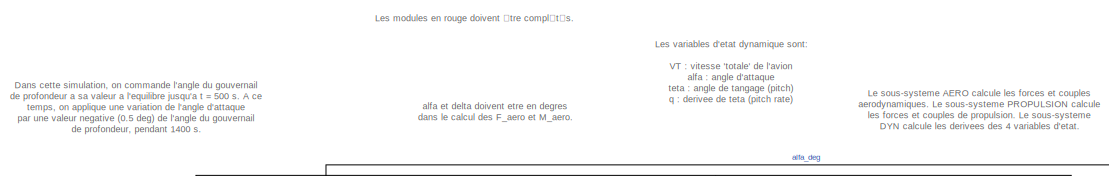
[diagram: root canvas - part 1/2, top center region]
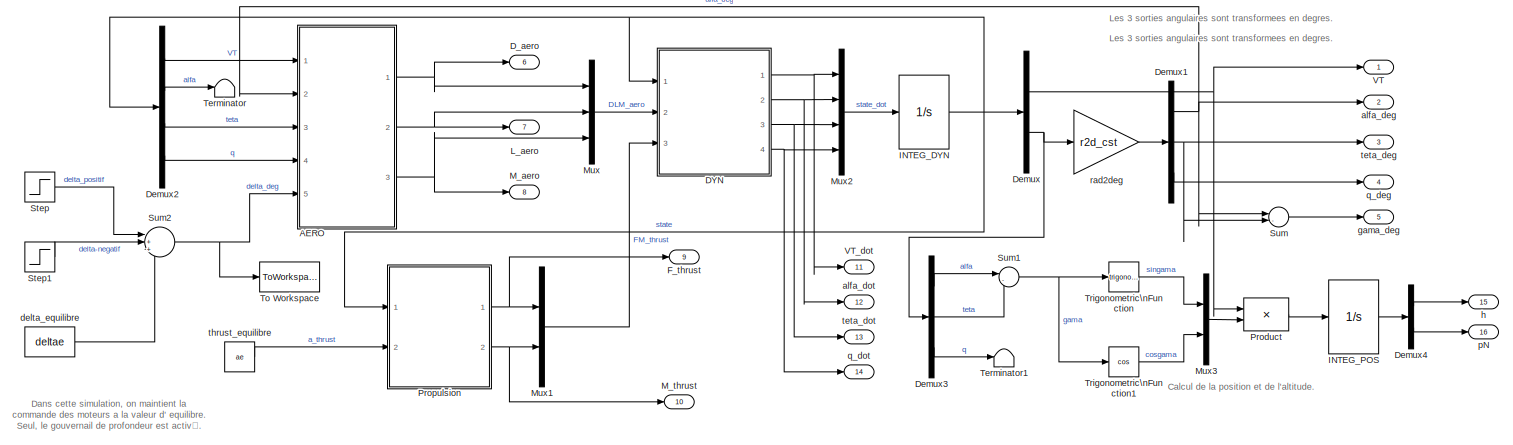
[diagram: root canvas - part 2/2, full width, middle band]
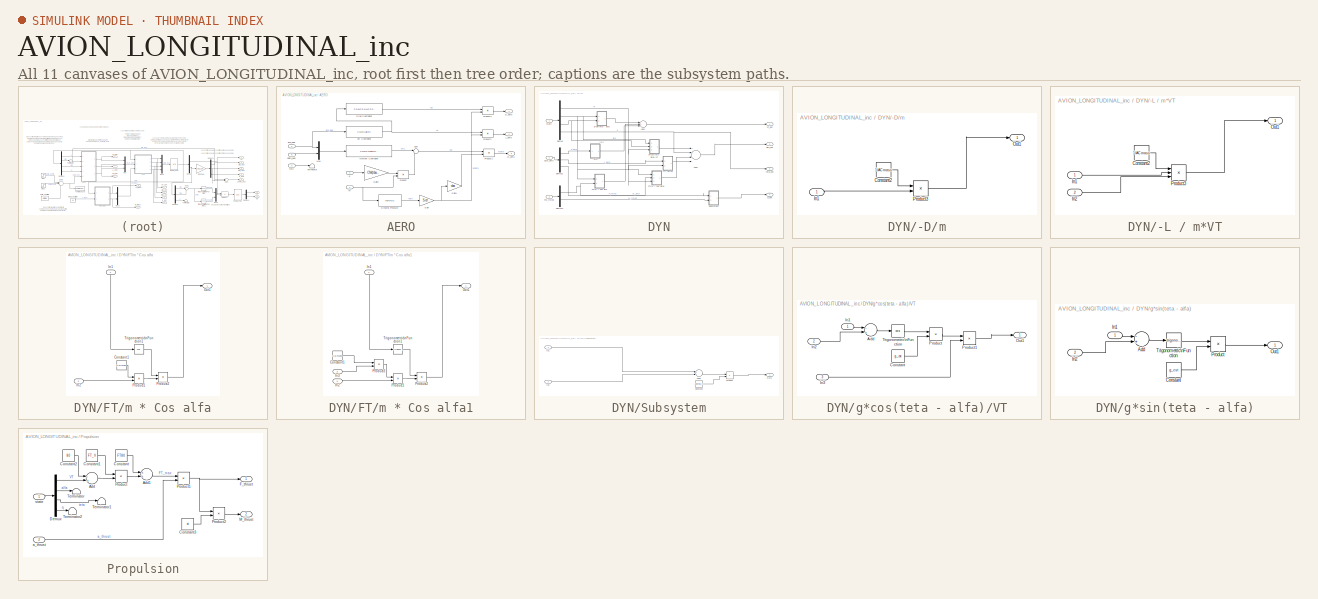
[diagram: thumbnail index - all 11 canvases of the model, root first then tree order]
MODEL AVION_LONGITUDINAL_inc
KIND model
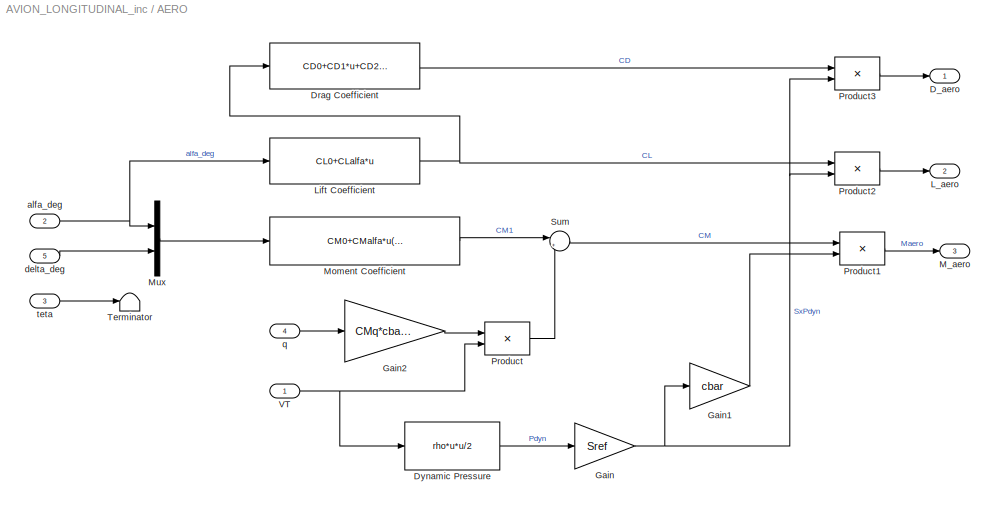
BLOCK [SubSystem] AERO
  FunctionWithSeparateData = off
  MaskHideContents = off
  MinAlgLoopOccurrences = off
  Opaque = off
  Ports = [5, 3]
  PropExecContextOutsideSubsystem = off
  RTWSystemCode = Auto
  RequestExecContextInheritance = off
  SID = 1
BLOCK [Outport] AERO/D_aero
  IconDisplay = Port number
  SID = 21
BLOCK [Fcn] AERO/Drag Coefficient
  Expr = CD0+CD1*u+CD2*u*u
  SID = 7
BLOCK [Fcn] AERO/Dynamic Pressure
  Expr = rho*u*u/2
  SID = 8
BLOCK [Gain] AERO/Gain
  Gain = Sref
  SID = 9
BLOCK [Gain] AERO/Gain1
  Gain = cbar
  SID = 10
BLOCK [Gain] AERO/Gain2
  Gain = CMq*cbar/2
  SID = 11
BLOCK [Outport] AERO/L_aero
  IconDisplay = Port number
  Port = 2
  SID = 22
BLOCK [Fcn] AERO/Lift Coefficient
  Expr = CL0+CLalfa*u
  SID = 12
BLOCK [Outport] AERO/M_aero
  IconDisplay = Port number
  Port = 3
  SID = 23
BLOCK [Fcn] AERO/Moment Coefficient
  Expr = CM0+CMalfa*u(1)+CMdelta*u(2)
  SID = 13
BLOCK [Mux] AERO/Mux
  DisplayOption = bar
  Inputs = 2
  Ports = [2, 1]
  SID = 14
BLOCK [Product] AERO/Product
  Inputs = */
  Ports = [2, 1]
  RndMeth = Floor
  SID = 15
BLOCK [Product] AERO/Product1
  Inputs = **
  Ports = [2, 1]
  RndMeth = Floor
  SID = 16
BLOCK [Product] AERO/Product2
  Inputs = **
  Ports = [2, 1]
  RndMeth = Floor
  SID = 17
BLOCK [Product] AERO/Product3
  Inputs = **
  Ports = [2, 1]
  RndMeth = Floor
  SID = 18
BLOCK [Sum] AERO/Sum
  IconShape = round
  Inputs = |++
  Ports = [2, 1]
  SID = 19
BLOCK [Terminator] AERO/Terminator
  SID = 20
BLOCK [Inport] AERO/VT
  IconDisplay = Port number
  SID = 2
BLOCK [Inport] AERO/alfa_deg
  IconDisplay = Port number
  Port = 2
  SID = 3
BLOCK [Inport] AERO/delta_deg
  IconDisplay = Port number
  Port = 5
  SID = 6
BLOCK [Inport] AERO/q
  IconDisplay = Port number
  Port = 4
  SID = 5
BLOCK [Inport] AERO/teta
  IconDisplay = Port number
  Port = 3
  SID = 4
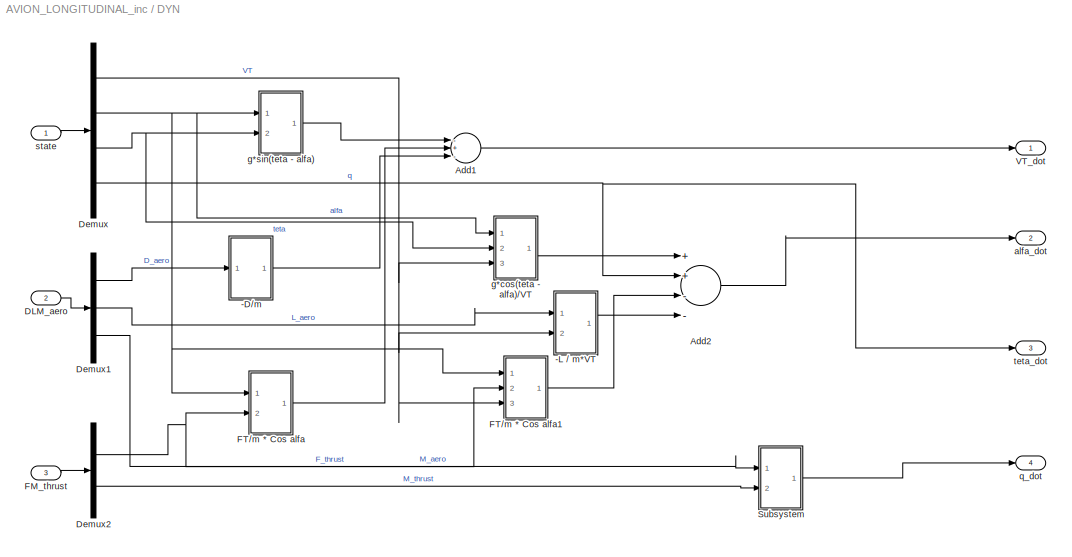
BLOCK [SubSystem] DYN
  FunctionWithSeparateData = off
  MaskHideContents = off
  MinAlgLoopOccurrences = off
  Opaque = off
  Ports = [3, 4]
  PropExecContextOutsideSubsystem = off
  RTWSystemCode = Auto
  RequestExecContextInheritance = off
  SID = 25
BLOCK [SubSystem] DYN/-D//m
  FunctionWithSeparateData = off
  MaskHideContents = off
  MinAlgLoopOccurrences = off
  Opaque = off
  Ports = [1, 1]
  PropExecContextOutsideSubsystem = off
  RTWSystemCode = Auto
  RequestExecContextInheritance = off
  SID = 180
BLOCK [Constant] DYN/-D//m/Constant2
  SID = 170
  Value = 1/ACmass
BLOCK [Inport] DYN/-D//m/In1
  IconDisplay = Port number
  SID = 181
BLOCK [Outport] DYN/-D//m/Out1
  IconDisplay = Port number
  SID = 182
BLOCK [Product] DYN/-D//m/Product3
  InputSameDT = off
  OutDataTypeStr = Inherit: Inherit via internal rule
  Ports = [2, 1]
  RndMeth = Floor
  SID = 171
  SaturateOnIntegerOverflow = off
BLOCK [SubSystem] DYN/-L // m*VT
  FunctionWithSeparateData = off
  MaskHideContents = off
  MinAlgLoopOccurrences = off
  Opaque = off
  Ports = [2, 1]
  PropExecContextOutsideSubsystem = off
  RTWSystemCode = Auto
  RequestExecContextInheritance = off
  SID = 214
BLOCK [Constant] DYN/-L // m*VT/Constant2
  SID = 216
  Value = 1/ACmass
BLOCK [Inport] DYN/-L // m*VT/In1
  IconDisplay = Port number
  SID = 215
BLOCK [Inport] DYN/-L // m*VT/In2
  IconDisplay = Port number
  Port = 2
  SID = 219
BLOCK [Outport] DYN/-L // m*VT/Out1
  IconDisplay = Port number
  SID = 218
BLOCK [Product] DYN/-L // m*VT/Product3
  InputSameDT = off
  Inputs = **/
  OutDataTypeStr = Inherit: Inherit via internal rule
  Ports = [3, 1]
  RndMeth = Floor
  SID = 217
  SaturateOnIntegerOverflow = off
BLOCK [Sum] DYN/Add1
  InputSameDT = off
  Inputs = -+-
  OutDataTypeStr = Inherit: Inherit via internal rule
  Ports = [3, 1]
  SID = 165
  SaturateOnIntegerOverflow = off
BLOCK [Sum] DYN/Add2
  InputSameDT = off
  Inputs = ++--
  OutDataTypeStr = Inherit: Inherit via internal rule
  Ports = [4, 1]
  SID = 200
  SaturateOnIntegerOverflow = off
BLOCK [Inport] DYN/DLM_aero
  IconDisplay = Port number
  Port = 2
  SID = 27
BLOCK [Demux] DYN/Demux
  Ports = [1, 4]
  SID = 29
BLOCK [Demux] DYN/Demux1
  Outputs = 3
  Ports = [1, 3]
  SID = 30
BLOCK [Demux] DYN/Demux2
  Outputs = 2
  Ports = [1, 2]
  SID = 31
BLOCK [Inport] DYN/FM_thrust
  IconDisplay = Port number
  Port = 3
  SID = 28
BLOCK [SubSystem] DYN/FT//m * Cos alfa
  FunctionWithSeparateData = off
  MaskHideContents = off
  MinAlgLoopOccurrences = off
  Opaque = off
  Ports = [2, 1]
  PropExecContextOutsideSubsystem = off
  RTWSystemCode = Auto
  RequestExecContextInheritance = off
  SID = 176
BLOCK [Constant] DYN/FT//m * Cos alfa/Constant1
  SID = 167
  Value = 1/ACmass
BLOCK [Inport] DYN/FT//m * Cos alfa/In1
  IconDisplay = Port number
  SID = 177
BLOCK [Inport] DYN/FT//m * Cos alfa/In2
  IconDisplay = Port number
  Port = 2
  SID = 178
BLOCK [Outport] DYN/FT//m * Cos alfa/Out1
  IconDisplay = Port number
  SID = 179
BLOCK [Product] DYN/FT//m * Cos alfa/Product1
  InputSameDT = off
  OutDataTypeStr = Inherit: Inherit via internal rule
  Ports = [2, 1]
  RndMeth = Floor
  SID = 166
  SaturateOnIntegerOverflow = off
BLOCK [Product] DYN/FT//m * Cos alfa/Product2
  InputSameDT = off
  OutDataTypeStr = Inherit: Inherit via internal rule
  Ports = [2, 1]
  RndMeth = Floor
  SID = 169
  SaturateOnIntegerOverflow = off
BLOCK [Trigonometry] DYN/FT//m * Cos alfa/Trigonometric\nFunction1
  Operator = cos
  Ports = [1, 1]
  SID = 168
BLOCK [SubSystem] DYN/FT//m * Cos alfa1
  FunctionWithSeparateData = off
  MaskHideContents = off
  MinAlgLoopOccurrences = off
  Opaque = off
  Ports = [3, 1]
  PropExecContextOutsideSubsystem = off
  RTWSystemCode = Auto
  RequestExecContextInheritance = off
  SID = 201
BLOCK [Constant] DYN/FT//m * Cos alfa1/Constant1
  SID = 204
  Value = 1/ACmass
BLOCK [Inport] DYN/FT//m * Cos alfa1/In1
  IconDisplay = Port number
  SID = 202
BLOCK [Inport] DYN/FT//m * Cos alfa1/In2
  IconDisplay = Port number
  Port = 2
  SID = 203
BLOCK [Inport] DYN/FT//m * Cos alfa1/In3
  IconDisplay = Port number
  Port = 3
  SID = 211
BLOCK [Outport] DYN/FT//m * Cos alfa1/Out1
  IconDisplay = Port number
  SID = 208
BLOCK [Product] DYN/FT//m * Cos alfa1/Product1
  InputSameDT = off
  OutDataTypeStr = Inherit: Inherit via internal rule
  Ports = [2, 1]
  RndMeth = Floor
  SID = 205
  SaturateOnIntegerOverflow = off
BLOCK [Product] DYN/FT//m * Cos alfa1/Product2
  InputSameDT = off
  OutDataTypeStr = Inherit: Inherit via internal rule
  Ports = [2, 1]
  RndMeth = Floor
  SID = 206
  SaturateOnIntegerOverflow = off
BLOCK [Product] DYN/FT//m * Cos alfa1/Product3
  InputSameDT = off
  Inputs = */
  OutDataTypeStr = Inherit: Inherit via internal rule
  Ports = [2, 1]
  RndMeth = Floor
  SID = 209
  SaturateOnIntegerOverflow = off
BLOCK [Trigonometry] DYN/FT//m * Cos alfa1/Trigonometric\nFunction1
  Ports = [1, 1]
  SID = 207
BLOCK [SubSystem] DYN/Subsystem
  FunctionWithSeparateData = off
  MaskHideContents = off
  MinAlgLoopOccurrences = off
  Opaque = off
  Ports = [2, 1]
  PropExecContextOutsideSubsystem = off
  RTWSystemCode = Auto
  RequestExecContextInheritance = off
  SID = 223
BLOCK [Sum] DYN/Subsystem/Add3
  InputSameDT = off
  OutDataTypeStr = Inherit: Inherit via internal rule
  Ports = [2, 1]
  SID = 220
  SaturateOnIntegerOverflow = off
BLOCK [Constant] DYN/Subsystem/Constant
  SID = 222
  Value = ACinertia_yy
BLOCK [Inport] DYN/Subsystem/In1
  IconDisplay = Port number
  SID = 224
BLOCK [Inport] DYN/Subsystem/In2
  IconDisplay = Port number
  Port = 2
  SID = 225
BLOCK [Outport] DYN/Subsystem/Out1
  IconDisplay = Port number
  SID = 226
BLOCK [Product] DYN/Subsystem/Product
  InputSameDT = off
  Inputs = */
  OutDataTypeStr = Inherit: Inherit via internal rule
  Ports = [2, 1]
  RndMeth = Floor
  SID = 221
  SaturateOnIntegerOverflow = off
BLOCK [Outport] DYN/VT_dot
  IconDisplay = Port number
  SID = 51
BLOCK [Outport] DYN/alfa_dot
  IconDisplay = Port number
  Port = 2
  SID = 52
BLOCK [SubSystem] DYN/g*cos(teta - alfa)//VT
  FunctionWithSeparateData = off
  MaskHideContents = off
  MinAlgLoopOccurrences = off
  Opaque = off
  Ports = [3, 1]
  PropExecContextOutsideSubsystem = off
  RTWSystemCode = Auto
  RequestExecContextInheritance = off
  SID = 187
BLOCK [Sum] DYN/g*cos(teta - alfa)//VT/Add
  InputSameDT = off
  Inputs = -+
  OutDataTypeStr = Inherit: Inherit via internal rule
  Ports = [2, 1]
  SID = 190
  SaturateOnIntegerOverflow = off
BLOCK [Constant] DYN/g*cos(teta - alfa)//VT/Constant
  SID = 191
  Value = g_cst
BLOCK [Inport] DYN/g*cos(teta - alfa)//VT/In1
  IconDisplay = Port number
  SID = 188
BLOCK [Inport] DYN/g*cos(teta - alfa)//VT/In2
  IconDisplay = Port number
  Port = 2
  SID = 189
BLOCK [Inport] DYN/g*cos(teta - alfa)//VT/In3
  IconDisplay = Port number
  Port = 3
  SID = 195
BLOCK [Outport] DYN/g*cos(teta - alfa)//VT/Out1
  IconDisplay = Port number
  SID = 194
BLOCK [Product] DYN/g*cos(teta - alfa)//VT/Product
  InputSameDT = off
  OutDataTypeStr = Inherit: Inherit via internal rule
  Ports = [2, 1]
  RndMeth = Floor
  SID = 192
  SaturateOnIntegerOverflow = off
BLOCK [Product] DYN/g*cos(teta - alfa)//VT/Product1
  InputSameDT = off
  Inputs = */
  OutDataTypeStr = Inherit: Inherit via internal rule
  Ports = [2, 1]
  RndMeth = Floor
  SID = 196
  SaturateOnIntegerOverflow = off
BLOCK [Trigonometry] DYN/g*cos(teta - alfa)//VT/Trigonometric\nFunction
  Operator = cos
  Ports = [1, 1]
  SID = 193
BLOCK [SubSystem] DYN/g*sin(teta - alfa)
  FunctionWithSeparateData = off
  MaskHideContents = off
  MinAlgLoopOccurrences = off
  Opaque = off
  Ports = [2, 1]
  PropExecContextOutsideSubsystem = off
  RTWSystemCode = Auto
  RequestExecContextInheritance = off
  SID = 183
BLOCK [Sum] DYN/g*sin(teta - alfa)/Add
  InputSameDT = off
  Inputs = -+
  OutDataTypeStr = Inherit: Inherit via internal rule
  Ports = [2, 1]
  SID = 162
  SaturateOnIntegerOverflow = off
BLOCK [Constant] DYN/g*sin(teta - alfa)/Constant
  SID = 161
  Value = g_cst
BLOCK [Inport] DYN/g*sin(teta - alfa)/In1
  IconDisplay = Port number
  SID = 184
BLOCK [Inport] DYN/g*sin(teta - alfa)/In2
  IconDisplay = Port number
  Port = 2
  SID = 185
BLOCK [Outport] DYN/g*sin(teta - alfa)/Out1
  IconDisplay = Port number
  SID = 186
BLOCK [Product] DYN/g*sin(teta - alfa)/Product
  InputSameDT = off
  OutDataTypeStr = Inherit: Inherit via internal rule
  Ports = [2, 1]
  RndMeth = Floor
  SID = 164
  SaturateOnIntegerOverflow = off
BLOCK [Trigonometry] DYN/g*sin(teta - alfa)/Trigonometric\nFunction
  Ports = [1, 1]
  SID = 163
BLOCK [Outport] DYN/q_dot
  IconDisplay = Port number
  Port = 4
  SID = 54
BLOCK [Inport] DYN/state
  IconDisplay = Port number
  SID = 26
BLOCK [Outport] DYN/teta_dot
  IconDisplay = Port number
  Port = 3
  SID = 53
BLOCK [Outport] D_aero
  IconDisplay = Port number
  Port = 6
  SID = 115
BLOCK [Demux] Demux
  Outputs = [1,3]
  Ports = [1, 2]
  SID = 55
BLOCK [Demux] Demux1
  Outputs = 3
  Ports = [1, 3]
  SID = 56
BLOCK [Demux] Demux2
  Ports = [1, 4]
  SID = 57
BLOCK [Demux] Demux3
  Outputs = 3
  Ports = [1, 3]
  SID = 58
BLOCK [Demux] Demux4
  Outputs = 2
  Ports = [1, 2]
  SID = 59
BLOCK [Outport] F_thrust
  IconDisplay = Port number
  Port = 9
  SID = 118
BLOCK [Integrator] INTEG_DYN
  InitialCondition = etat_ini
  Ports = [1, 1]
  SID = 63
BLOCK [Integrator] INTEG_POS
  InitialCondition = pos_ini
  Ports = [1, 1]
  SID = 64
BLOCK [Outport] L_aero
  IconDisplay = Port number
  Port = 7
  SID = 116
BLOCK [Outport] M_aero
  IconDisplay = Port number
  Port = 8
  SID = 117
BLOCK [Outport] M_thrust
  IconDisplay = Port number
  Port = 10
  SID = 119
BLOCK [Mux] Mux
  DisplayOption = bar
  Inputs = 3
  Ports = [3, 1]
  SID = 67
BLOCK [Mux] Mux1
  DisplayOption = bar
  Inputs = 2
  Ports = [2, 1]
  SID = 68
BLOCK [Mux] Mux2
  DisplayOption = bar
  Ports = [4, 1]
  SID = 69
BLOCK [Mux] Mux3
  DisplayOption = bar
  Inputs = 2
  Ports = [2, 1]
  SID = 70
BLOCK [Product] Product
  Inputs = **
  Ports = [2, 1]
  RndMeth = Floor
  SID = 74
BLOCK [SubSystem] Propulsion
  FunctionWithSeparateData = off
  MaskHideContents = off
  MinAlgLoopOccurrences = off
  Opaque = off
  Ports = [2, 2]
  PropExecContextOutsideSubsystem = off
  RTWSystemCode = Auto
  RequestExecContextInheritance = off
  SID = 76
BLOCK [Sum] Propulsion/Add
  InputSameDT = off
  Inputs = -+
  OutDataTypeStr = Inherit: Inherit via internal rule
  Ports = [2, 1]
  SID = 152
  SaturateOnIntegerOverflow = off
BLOCK [Sum] Propulsion/Add1
  InputSameDT = off
  OutDataTypeStr = Inherit: Inherit via internal rule
  Ports = [2, 1]
  SID = 154
  SaturateOnIntegerOverflow = off
BLOCK [Constant] Propulsion/Constant
  SID = 149
  Value = FT80
BLOCK [Constant] Propulsion/Constant1
  SID = 150
  Value = FT_V
BLOCK [Constant] Propulsion/Constant2
  SID = 151
  Value = 80
BLOCK [Constant] Propulsion/Constant3
  SID = 156
  Value = xt
BLOCK [Demux] Propulsion/Demux
  Ports = [1, 4]
  SID = 79
BLOCK [Outport] Propulsion/F_thrust
  IconDisplay = Port number
  SID = 86
BLOCK [Outport] Propulsion/M_thrust
  IconDisplay = Port number
  Port = 2
  SID = 87
BLOCK [Product] Propulsion/Product
  InputSameDT = off
  OutDataTypeStr = Inherit: Inherit via internal rule
  Ports = [2, 1]
  RndMeth = Floor
  SID = 153
  SaturateOnIntegerOverflow = off
BLOCK [Product] Propulsion/Product1
  InputSameDT = off
  OutDataTypeStr = Inherit: Inherit via internal rule
  Ports = [2, 1]
  RndMeth = Floor
  SID = 155
  SaturateOnIntegerOverflow = off
BLOCK [Product] Propulsion/Product2
  InputSameDT = off
  OutDataTypeStr = Inherit: Inherit via internal rule
  Ports = [2, 1]
  RndMeth = Floor
  SID = 157
  SaturateOnIntegerOverflow = off
BLOCK [Terminator] Propulsion/Terminator
  SID = 158
BLOCK [Terminator] Propulsion/Terminator1
  SID = 159
BLOCK [Terminator] Propulsion/Terminator2
  SID = 160
BLOCK [Inport] Propulsion/a_thrust
  IconDisplay = Port number
  Port = 2
  SID = 78
BLOCK [Inport] Propulsion/state
  IconDisplay = Port number
  SID = 77
BLOCK [Step] Step
  After = 0.5
  SID = 88
  SampleTime = 0
  Time = 1900
BLOCK [Step] Step1
  After = -0.5
  SID = 89
  SampleTime = 0
  Time = 500
BLOCK [Sum] Sum
  IconShape = round
  Inputs = |-+
  Ports = [2, 1]
  SID = 90
BLOCK [Sum] Sum1
  IconShape = round
  Inputs = |-+
  Ports = [2, 1]
  SID = 91
BLOCK [Sum] Sum2
  IconShape = round
  Inputs = |+++
  Ports = [3, 1]
  SID = 92
BLOCK [Terminator] Terminator
  SID = 97
BLOCK [Terminator] Terminator1
  SID = 98
BLOCK [ToWorkspace] To Workspace
  MaxDataPoints = inf
  Ports = [1]
  SID = 99
  SampleTime = -1
  VariableName = delta_deg
BLOCK [Trigonometry] Trigonometric\nFunction
  Ports = [1, 1]
  SID = 100
BLOCK [Trigonometry] Trigonometric\nFunction1
  Operator = cos
  Ports = [1, 1]
  SID = 101
BLOCK [Outport] VT
  IconDisplay = Port number
  SID = 110
BLOCK [Outport] VT_dot
  IconDisplay = Port number
  Port = 11
  SID = 120
BLOCK [Outport] alfa_deg
  IconDisplay = Port number
  Port = 2
  SID = 111
BLOCK [Outport] alfa_dot
  IconDisplay = Port number
  Port = 12
  SID = 121
BLOCK [Constant] delta_equilibre
  SID = 104
  Value = deltae
BLOCK [Outport] gama_deg
  IconDisplay = Port number
  Port = 5
  SID = 114
BLOCK [Outport] h
  IconDisplay = Port number
  Port = 15
  SID = 124
BLOCK [Outport] pN
  IconDisplay = Port number
  Port = 16
  SID = 125
BLOCK [Outport] q_deg
  IconDisplay = Port number
  Port = 4
  SID = 113
BLOCK [Outport] q_dot
  IconDisplay = Port number
  Port = 14
  SID = 123
BLOCK [Gain] rad2deg
  Gain = r2d_cst
  SID = 105
BLOCK [Outport] teta_deg
  IconDisplay = Port number
  Port = 3
  SID = 112
BLOCK [Outport] teta_dot
  IconDisplay = Port number
  Port = 13
  SID = 122
BLOCK [Constant] thrust_equilibre
  SID = 109
  Value = ae
ANNOTATION (root): Calcul de la position et de l'altitude.
ANNOTATION (root): Dans cette simulation, on commande l'angle du gouvernail \nde profondeur a sa valeur a l'equilibre jusqu'a t = 500 s. A ce \ntemps, on applique une variation de l'angle d'attaque \npar une valeur negative (0.5 deg) de l'angle du gouvernail\nde profondeur, pendant 1400 s.
ANNOTATION (root): Dans cette simulation, on maintient la \ncommande des moteurs a la valeur d' equilibre.\nSeul, le gouvernail de profondeur est activé.
ANNOTATION (root): Le sous-systeme AERO calcule les forces et couples\naerodynamiques. Le sous-systeme PROPULSION calcule\nles forces et couples de propulsion. Le sous-systeme\nDYN calcule les derivees des 4 variables d'etat.
ANNOTATION (root): Les 3 sorties angulaires sont transformees en degres.
ANNOTATION (root): Les modules en rouge doivent être complétés.
ANNOTATION (root): Les variables d'etat dynamique sont:\n\nVT : vitesse 'totale' de l'avion\nalfa : angle d'attaque\nteta : angle de tangage (pitch)\nq : derivee de teta (pitch rate)\n\nLes variables d'etat cinematique sont:\n\nh : altitude\npN : position horizontale de l'avion.
ANNOTATION (root): alfa et delta doivent etre en degres\ndans le calcul des F_aero et M_aero.
LINE AERO/Drag Coefficient:1 -> AERO/Product3:1
LINE AERO/Dynamic Pressure:1 -> AERO/Gain:1
LINE AERO/Gain1:1 -> AERO/Product1:2
LINE AERO/Gain2:1 -> AERO/Product:1
NET AERO/Gain:1 -> AERO/Gain1:1, AERO/Product2:2, AERO/Product3:2
NET AERO/Lift Coefficient:1 -> AERO/Drag Coefficient:1, AERO/Product2:1
LINE AERO/Moment Coefficient:1 -> AERO/Sum:1
LINE AERO/Mux:1 -> AERO/Moment Coefficient:1
LINE AERO/Product1:1 -> AERO/M_aero:1
LINE AERO/Product2:1 -> AERO/L_aero:1
LINE AERO/Product3:1 -> AERO/D_aero:1
LINE AERO/Product:1 -> AERO/Sum:2
LINE AERO/Sum:1 -> AERO/Product1:1
NET AERO/VT:1 -> AERO/Dynamic Pressure:1, AERO/Product:2
NET AERO/alfa_deg:1 -> AERO/Lift Coefficient:1, AERO/Mux:1
LINE AERO/delta_deg:1 -> AERO/Mux:2
LINE AERO/q:1 -> AERO/Gain2:1
LINE AERO/teta:1 -> AERO/Terminator:1
NET AERO:1 -> D_aero:1, Mux:1
NET AERO:2 -> L_aero:1, Mux:2
NET AERO:3 -> M_aero:1, Mux:3
LINE DYN/-D//m/Constant2:1 -> DYN/-D//m/Product3:1
LINE DYN/-D//m/In1:1 -> DYN/-D//m/Product3:2
LINE DYN/-D//m/Product3:1 -> DYN/-D//m/Out1:1
LINE DYN/-D//m:1 -> DYN/Add1:3
LINE DYN/-L // m*VT/Constant2:1 -> DYN/-L // m*VT/Product3:1
LINE DYN/-L // m*VT/In1:1 -> DYN/-L // m*VT/Product3:2
LINE DYN/-L // m*VT/In2:1 -> DYN/-L // m*VT/Product3:3
LINE DYN/-L // m*VT/Product3:1 -> DYN/-L // m*VT/Out1:1
LINE DYN/-L // m*VT:1 -> DYN/Add2:4
LINE DYN/Add1:1 -> DYN/VT_dot:1
LINE DYN/Add2:1 -> DYN/alfa_dot:1
LINE DYN/DLM_aero:1 -> DYN/Demux1:1
LINE DYN/Demux1:1 -> DYN/-D//m:1
LINE DYN/Demux1:2 -> DYN/-L // m*VT:1
LINE DYN/Demux1:3 -> DYN/Subsystem:1
NET DYN/Demux2:1 -> DYN/FT//m * Cos alfa1:2, DYN/FT//m * Cos alfa:2
LINE DYN/Demux2:2 -> DYN/Subsystem:2
NET DYN/Demux:1 -> DYN/-L // m*VT:2, DYN/FT//m * Cos alfa1:3, DYN/g*cos(teta - alfa)//VT:3
NET DYN/Demux:2 -> DYN/FT//m * Cos alfa1:1, DYN/FT//m * Cos alfa:1, DYN/g*cos(teta - alfa)//VT:1, DYN/g*sin(teta - alfa):1
NET DYN/Demux:3 -> DYN/g*cos(teta - alfa)//VT:2, DYN/g*sin(teta - alfa):2
NET DYN/Demux:4 -> DYN/Add2:2, DYN/teta_dot:1
LINE DYN/FM_thrust:1 -> DYN/Demux2:1
LINE DYN/FT//m * Cos alfa/Constant1:1 -> DYN/FT//m * Cos alfa/Product1:1
LINE DYN/FT//m * Cos alfa/In1:1 -> DYN/FT//m * Cos alfa/Trigonometric\nFunction1:1
LINE DYN/FT//m * Cos alfa/In2:1 -> DYN/FT//m * Cos alfa/Product1:2
LINE DYN/FT//m * Cos alfa/Product1:1 -> DYN/FT//m * Cos alfa/Product2:2
LINE DYN/FT//m * Cos alfa/Product2:1 -> DYN/FT//m * Cos alfa/Out1:1
LINE DYN/FT//m * Cos alfa/Trigonometric\nFunction1:1 -> DYN/FT//m * Cos alfa/Product2:1
LINE DYN/FT//m * Cos alfa1/Constant1:1 -> DYN/FT//m * Cos alfa1/Product3:1
LINE DYN/FT//m * Cos alfa1/In1:1 -> DYN/FT//m * Cos alfa1/Trigonometric\nFunction1:1
LINE DYN/FT//m * Cos alfa1/In2:1 -> DYN/FT//m * Cos alfa1/Product1:2
LINE DYN/FT//m * Cos alfa1/In3:1 -> DYN/FT//m * Cos alfa1/Product3:2
LINE DYN/FT//m * Cos alfa1/Product1:1 -> DYN/FT//m * Cos alfa1/Product2:2
LINE DYN/FT//m * Cos alfa1/Product2:1 -> DYN/FT//m * Cos alfa1/Out1:1
LINE DYN/FT//m * Cos alfa1/Product3:1 -> DYN/FT//m * Cos alfa1/Product1:1
LINE DYN/FT//m * Cos alfa1/Trigonometric\nFunction1:1 -> DYN/FT//m * Cos alfa1/Product2:1
LINE DYN/FT//m * Cos alfa1:1 -> DYN/Add2:3
LINE DYN/FT//m * Cos alfa:1 -> DYN/Add1:2
LINE DYN/Subsystem/Add3:1 -> DYN/Subsystem/Product:1
LINE DYN/Subsystem/Constant:1 -> DYN/Subsystem/Product:2
LINE DYN/Subsystem/In1:1 -> DYN/Subsystem/Add3:1
LINE DYN/Subsystem/In2:1 -> DYN/Subsystem/Add3:2
LINE DYN/Subsystem/Product:1 -> DYN/Subsystem/Out1:1
LINE DYN/Subsystem:1 -> DYN/q_dot:1
LINE DYN/g*cos(teta - alfa)//VT/Add:1 -> DYN/g*cos(teta - alfa)//VT/Trigonometric\nFunction:1
LINE DYN/g*cos(teta - alfa)//VT/Constant:1 -> DYN/g*cos(teta - alfa)//VT/Product:2
LINE DYN/g*cos(teta - alfa)//VT/In1:1 -> DYN/g*cos(teta - alfa)//VT/Add:1
LINE DYN/g*cos(teta - alfa)//VT/In2:1 -> DYN/g*cos(teta - alfa)//VT/Add:2
LINE DYN/g*cos(teta - alfa)//VT/In3:1 -> DYN/g*cos(teta - alfa)//VT/Product1:2
LINE DYN/g*cos(teta - alfa)//VT/Product1:1 -> DYN/g*cos(teta - alfa)//VT/Out1:1
LINE DYN/g*cos(teta - alfa)//VT/Product:1 -> DYN/g*cos(teta - alfa)//VT/Product1:1
LINE DYN/g*cos(teta - alfa)//VT/Trigonometric\nFunction:1 -> DYN/g*cos(teta - alfa)//VT/Product:1
LINE DYN/g*cos(teta - alfa)//VT:1 -> DYN/Add2:1
LINE DYN/g*sin(teta - alfa)/Add:1 -> DYN/g*sin(teta - alfa)/Trigonometric\nFunction:1
LINE DYN/g*sin(teta - alfa)/Constant:1 -> DYN/g*sin(teta - alfa)/Product:2
LINE DYN/g*sin(teta - alfa)/In1:1 -> DYN/g*sin(teta - alfa)/Add:1
LINE DYN/g*sin(teta - alfa)/In2:1 -> DYN/g*sin(teta - alfa)/Add:2
LINE DYN/g*sin(teta - alfa)/Product:1 -> DYN/g*sin(teta - alfa)/Out1:1
LINE DYN/g*sin(teta - alfa)/Trigonometric\nFunction:1 -> DYN/g*sin(teta - alfa)/Product:1
LINE DYN/g*sin(teta - alfa):1 -> DYN/Add1:1
LINE DYN/state:1 -> DYN/Demux:1
NET DYN:1 -> Mux2:1, VT_dot:1
NET DYN:2 -> Mux2:2, alfa_dot:1
NET DYN:3 -> Mux2:3, teta_dot:1
NET DYN:4 -> Mux2:4, q_dot:1
NET Demux1:1 -> AERO:2, Sum:1, alfa_deg:1
NET Demux1:2 -> Sum:2, teta_deg:1
LINE Demux1:3 -> q_deg:1
LINE Demux2:1 -> AERO:1
LINE Demux2:2 -> Terminator:1
LINE Demux2:3 -> AERO:3
LINE Demux2:4 -> AERO:4
LINE Demux3:1 -> Sum1:1
LINE Demux3:2 -> Sum1:2
LINE Demux3:3 -> Terminator1:1
LINE Demux4:1 -> h:1
LINE Demux4:2 -> pN:1
NET Demux:1 -> Product:1, VT:1
NET Demux:2 -> Demux3:1, rad2deg:1
NET INTEG_DYN:1 -> DYN:1, Demux2:1, Demux:1, Propulsion:1
LINE INTEG_POS:1 -> Demux4:1
LINE Mux1:1 -> DYN:3
LINE Mux2:1 -> INTEG_DYN:1
LINE Mux3:1 -> Product:2
LINE Mux:1 -> DYN:2
LINE Product:1 -> INTEG_POS:1
LINE Propulsion/Add1:1 -> Propulsion/Product1:1
LINE Propulsion/Add:1 -> Propulsion/Product:2
LINE Propulsion/Constant1:1 -> Propulsion/Product:1
LINE Propulsion/Constant2:1 -> Propulsion/Add:1
LINE Propulsion/Constant3:1 -> Propulsion/Product2:2
LINE Propulsion/Constant:1 -> Propulsion/Add1:1
LINE Propulsion/Demux:1 -> Propulsion/Add:2
LINE Propulsion/Demux:2 -> Propulsion/Terminator:1
LINE Propulsion/Demux:3 -> Propulsion/Terminator1:1
LINE Propulsion/Demux:4 -> Propulsion/Terminator2:1
NET Propulsion/Product1:1 -> Propulsion/F_thrust:1, Propulsion/Product2:1
LINE Propulsion/Product2:1 -> Propulsion/M_thrust:1
LINE Propulsion/Product:1 -> Propulsion/Add1:2
LINE Propulsion/a_thrust:1 -> Propulsion/Product1:2
LINE Propulsion/state:1 -> Propulsion/Demux:1
NET Propulsion:1 -> F_thrust:1, Mux1:1
NET Propulsion:2 -> M_thrust:1, Mux1:2
LINE Step1:1 -> Sum2:2
LINE Step:1 -> Sum2:1
NET Sum1:1 -> Trigonometric\nFunction1:1, Trigonometric\nFunction:1
NET Sum2:1 -> AERO:5, To Workspace:1
LINE Sum:1 -> gama_deg:1
LINE Trigonometric\nFunction1:1 -> Mux3:2
LINE Trigonometric\nFunction:1 -> Mux3:1
LINE delta_equilibre:1 -> Sum2:3
LINE rad2deg:1 -> Demux1:1
LINE thrust_equilibre:1 -> Propulsion:2
note: NET lines group one-source signal fan-out (src -> all destinations, sorted); 1:1 wires keep LINE
